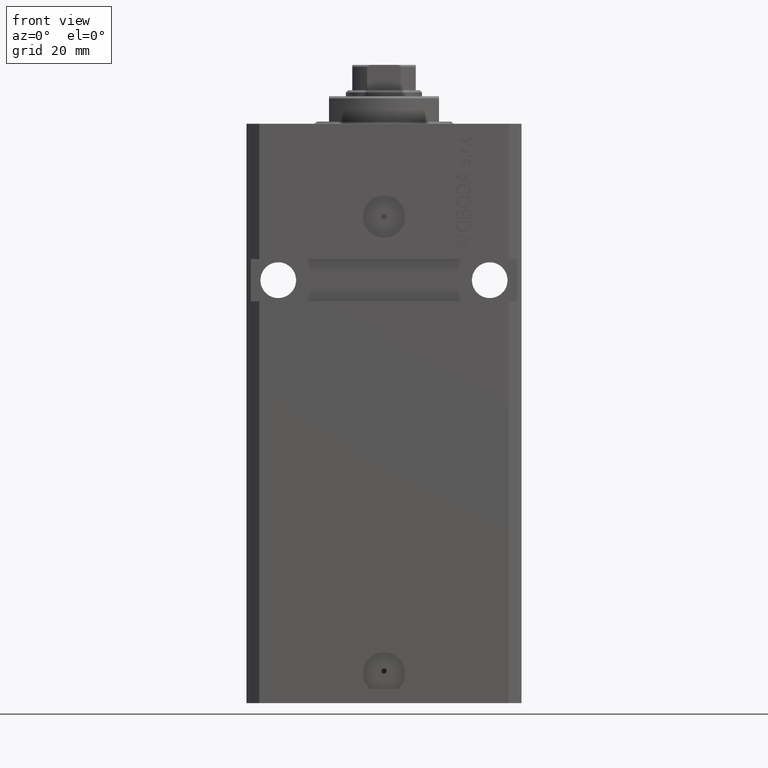
[diagram: clean part render]
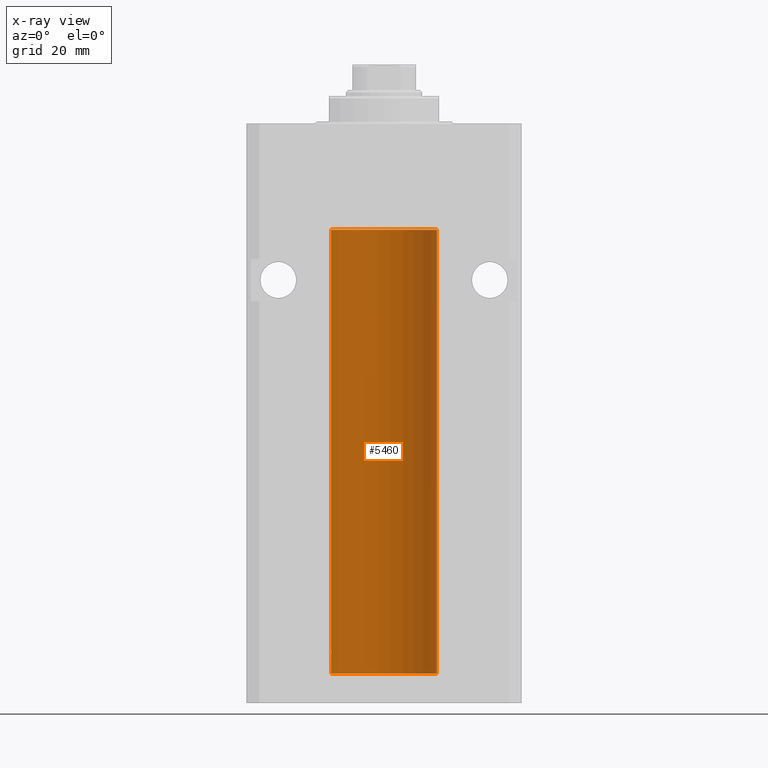
[diagram: x-ray — body ghosted, one internal face saturated and labeled with its STEP entity id]
A machine part, front view, then the same camera in x-ray: the body is ghosted and one INTERNAL B-rep face — a face not visible from any outside direction — is saturated and labeled: STEP entity #5460.
In plain terms, the highlighted cylindrical surface (partial cylindrical patch) has radius 12.5 mm, axis along (0, 0, 1).
Its self-contained STEP definition (entity closure, byte-faithful):
#411 = ORIENTED_EDGE ( 'NONE', *, *, #46166, .F. ) ;
#1959 = DIRECTION ( 'NONE',  ( -0.000000000000000000, -0.000000000000000000, 1.000000000000000000 ) ) ;
#2140 = CYLINDRICAL_SURFACE ( 'NONE', #17166, 12.50000000000000000 ) ;
#2396 = ORIENTED_EDGE ( 'NONE', *, *, #29258, .F. ) ;
#2419 = CARTESIAN_POINT ( 'NONE',  ( 12.50000000000000000, 0.000000000000000000, -130.0999999999999943 ) ) ;
#3448 = DIRECTION ( 'NONE',  ( -0.000000000000000000, -0.000000000000000000, 1.000000000000000000 ) ) ;
#4420 = EDGE_CURVE ( 'NONE', #11764, #44221, #35130, .T. ) ;
#4683 = VECTOR ( 'NONE', #3448, 1000.000000000000000 ) ;
#5146 = AXIS2_PLACEMENT_3D ( 'NONE', #5429, #16441, #11903 ) ;
#5429 = CARTESIAN_POINT ( 'NONE',  ( 0.000000000000000000, 0.000000000000000000, -25.10000000000000142 ) ) ;
#5460 = ADVANCED_FACE ( 'NONE', ( #38652 ), #2140, .F. ) ;
#6358 = EDGE_CURVE ( 'NONE', #11764, #38035, #39283, .T. ) ;
#8307 = EDGE_CURVE ( 'NONE', #42800, #43215, #45610, .T. ) ;
#9846 = CARTESIAN_POINT ( 'NONE',  ( -12.50000000000017941, 3.883381307462307207E-13, -125.6250000000035953 ) ) ;
#11186 = VERTEX_POINT ( 'NONE', #12491 ) ;
#11245 = CIRCLE ( 'NONE', #5146, 12.50000000000000000 ) ;
#11566 = CARTESIAN_POINT ( 'NONE',  ( -12.50000000000017941, 3.883381307462307207E-13, -125.6250000000035953 ) ) ;
#11764 = VERTEX_POINT ( 'NONE', #30545 ) ;
#11903 = DIRECTION ( 'NONE',  ( 1.000000000000000000, 0.000000000000000000, 0.000000000000000000 ) ) ;
#12491 = CARTESIAN_POINT ( 'NONE',  ( -12.50000000000000000, 1.530808498934191521E-15, -25.10000000000000142 ) ) ;
#13500 = ORIENTED_EDGE ( 'NONE', *, *, #6358, .F. ) ;
#13673 = CARTESIAN_POINT ( 'NONE',  ( -12.49625855304193855, 0.3150454781037954621, -124.4540280029748658 ) ) ;
#13985 = LINE ( 'NONE', #39269, #4683 ) ;
#14122 = CARTESIAN_POINT ( 'NONE',  ( -12.50000000000000000, 1.530808498934191521E-15, -130.0999999999999943 ) ) ;
#14664 = EDGE_LOOP ( 'NONE', ( #2396, #13500, #28389, #28634, #411, #16220 ) ) ;
#16220 = ORIENTED_EDGE ( 'NONE', *, *, #8307, .T. ) ;
#16441 = DIRECTION ( 'NONE',  ( 0.000000000000000000, 0.000000000000000000, 1.000000000000000000 ) ) ;
#17130 = VECTOR ( 'NONE', #1959, 1000.000000000000000 ) ;
#17166 = AXIS2_PLACEMENT_3D ( 'NONE', #27444, #31949, #35083 ) ;
#17724 = CARTESIAN_POINT ( 'NONE',  ( -12.48520330846398174, 0.6088355886774048376, -125.1632543185256310 ) ) ;
#18237 = EDGE_CURVE ( 'NONE', #44221, #11186, #11245, .T. ) ;
#20607 = CARTESIAN_POINT ( 'NONE',  ( -12.48810268015257563, 0.5573155909661203777, -124.6734741009386909 ) ) ;
#21278 = LINE ( 'NONE', #14122, #33603 ) ;
#23277 = AXIS2_PLACEMENT_3D ( 'NONE', #26921, #23332, #37893 ) ;
#23332 = DIRECTION ( 'NONE',  ( 0.000000000000000000, 0.000000000000000000, 1.000000000000000000 ) ) ;
#24181 = CARTESIAN_POINT ( 'NONE',  ( -12.49999999999999467, 0.1631761135151251485, -125.6249999999999005 ) ) ;
#25106 = CARTESIAN_POINT ( 'NONE',  ( -12.48436813453758631, 0.6249418250771061611, -124.8366899679892441 ) ) ;
#26921 = CARTESIAN_POINT ( 'NONE',  ( 0.000000000000000000, 0.000000000000000000, -130.0999999999999943 ) ) ;
#27444 = CARTESIAN_POINT ( 'NONE',  ( 0.000000000000000000, 0.000000000000000000, -130.0999999999999943 ) ) ;
#28389 = ORIENTED_EDGE ( 'NONE', *, *, #4420, .T. ) ;
#28449 = CARTESIAN_POINT ( 'NONE',  ( -12.49011732893843707, 0.5003763274120269777, -125.3834811128928806 ) ) ;
#28634 = ORIENTED_EDGE ( 'NONE', *, *, #18237, .T. ) ;
#28666 = DIRECTION ( 'NONE',  ( -0.000000000000000000, -0.000000000000000000, 1.000000000000000000 ) ) ;
#29258 = EDGE_CURVE ( 'NONE', #38035, #43215, #21278, .T. ) ;
#30545 = CARTESIAN_POINT ( 'NONE',  ( 12.50000000000000000, 0.000000000000000000, -130.0999999999999943 ) ) ;
#31949 = DIRECTION ( 'NONE',  ( -0.000000000000000000, -0.000000000000000000, 1.000000000000000000 ) ) ;
#32033 = CARTESIAN_POINT ( 'NONE',  ( -12.48436376893640265, 0.6250290278979852010, -125.0813208282447135 ) ) ;
#32535 = CARTESIAN_POINT ( 'NONE',  ( 12.50000000000000000, 0.000000000000000000, -25.10000000000000142 ) ) ;
#33603 = VECTOR ( 'NONE', #28666, 1000.000000000000000 ) ;
#34601 = CARTESIAN_POINT ( 'NONE',  ( -12.50000000000000000, -1.890568805888175348E-14, -124.3750000000000000 ) ) ;
#35083 = DIRECTION ( 'NONE',  ( 1.000000000000000000, 0.000000000000000000, 0.000000000000000000 ) ) ;
#35130 = LINE ( 'NONE', #2419, #17130 ) ;
#35398 = CARTESIAN_POINT ( 'NONE',  ( -12.50000000000000178, 0.08260426088727608473, -124.3749999999999858 ) ) ;
#37893 = DIRECTION ( 'NONE',  ( 1.000000000000000000, 0.000000000000000000, 0.000000000000000000 ) ) ;
#38035 = VERTEX_POINT ( 'NONE', #46468 ) ;
#38652 = FACE_OUTER_BOUND ( 'NONE', #14664, .T. ) ;
#39269 = CARTESIAN_POINT ( 'NONE',  ( -12.50000000000000000, 1.530808498934191521E-15, -130.0999999999999943 ) ) ;
#39283 = CIRCLE ( 'NONE', #23277, 12.50000000000000000 ) ;
#39424 = CARTESIAN_POINT ( 'NONE',  ( -12.49631005746706691, 0.3253680783018559897, -125.5585674046538998 ) ) ;
#39650 = CARTESIAN_POINT ( 'NONE',  ( -12.48809959379011758, 0.5462151254764870956, -125.3146137048161677 ) ) ;
#42522 = CARTESIAN_POINT ( 'NONE',  ( -12.50000000000000000, -1.890568805888175348E-14, -124.3750000000000000 ) ) ;
#42800 = VERTEX_POINT ( 'NONE', #34601 ) ;
#43215 = VERTEX_POINT ( 'NONE', #11566 ) ;
#44221 = VERTEX_POINT ( 'NONE', #32535 ) ;
#45610 = B_SPLINE_CURVE_WITH_KNOTS ( 'NONE', 3,
 ( #42522, #35398, #46334, #13673, #46803, #20607, #25106, #32033, #17724, #39650, #28449, #39424, #24181, #9846 ),
 .UNSPECIFIED., .F., .F.,
 ( 4, 2, 2, 2, 2, 2, 4 ),
 ( 3.496117753580553008E-18, 0.0002442924852390892100, 0.0004885849704781749505, 0.0009771699409563759219, 0.001221462426195476462, 0.001465754911434576785, 0.001954339881912777865 ),
 .UNSPECIFIED. ) ;
#46166 = EDGE_CURVE ( 'NONE', #42800, #11186, #13985, .T. ) ;
#46334 = CARTESIAN_POINT ( 'NONE',  ( -12.49915784441387068, 0.1636601911727856851, -124.3912681898942765 ) ) ;
#46468 = CARTESIAN_POINT ( 'NONE',  ( -12.50000000000000000, 1.530808498934191521E-15, -130.0999999999999943 ) ) ;
#46803 = CARTESIAN_POINT ( 'NONE',  ( -12.49422197749723829, 0.3843754434364221040, -124.5004709956809705 ) ) ;